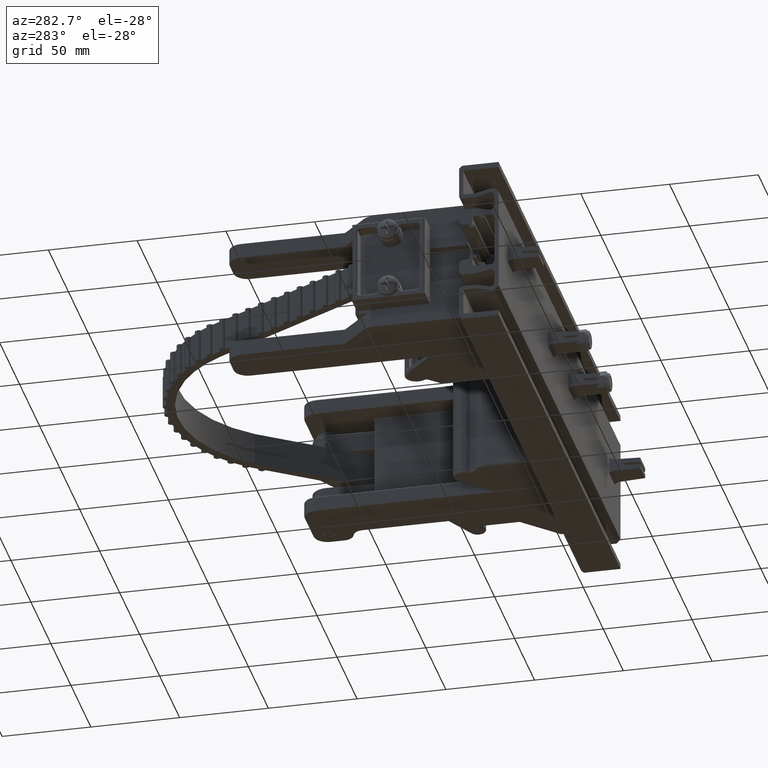
[diagram: clean part render]
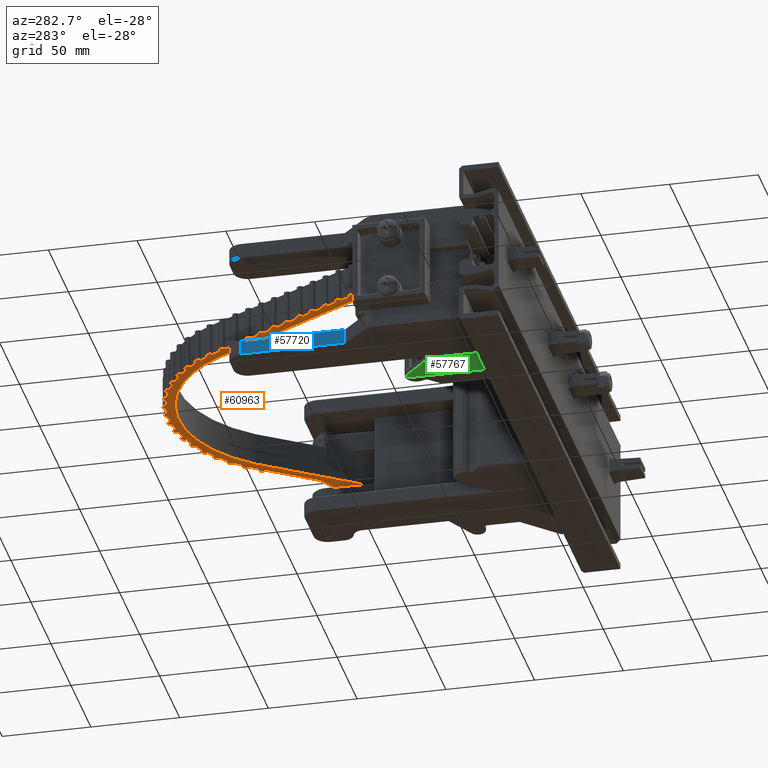
[diagram: same view with three faces highlighted in distinct colors, each labeled with its STEP entity id]
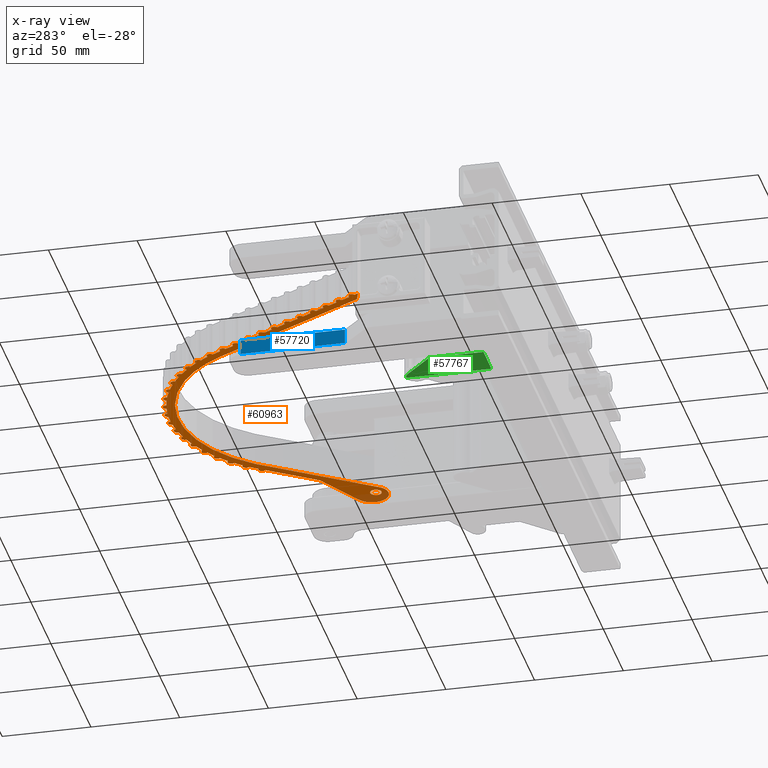
[diagram: x-ray of the same camera — body ghosted, the three highlighted faces saturated]
A machine part, auxiliary view with three faces highlighted in distinct colors.
The next image is the same camera in x-ray (body ghosted, the three faces saturated) — at least one of them is partly hidden behind the body in this view.
Their STEP definitions:

[orange] entity #60963 — the highlighted planar face has unit normal (0, 0, 1).
#382 = CARTESIAN_POINT ( 'NONE',  ( -7.459071182385302200, -2.123081717137933500, -0.3649999999999999900 ) ) ;
#397 = CARTESIAN_POINT ( 'NONE',  ( -5.865832357554712200, -0.8211496432181337700, -0.3649999999999999900 ) ) ;
#401 = CARTESIAN_POINT ( 'NONE',  ( -4.917234179520587400, -0.6250000000000000000, -0.3649999999999999900 ) ) ;
#405 = CARTESIAN_POINT ( 'NONE',  ( -7.938774677902513200, -3.692558603866293900, -0.3649999999999999900 ) ) ;
#411 = CARTESIAN_POINT ( 'NONE',  ( -7.337024255376846300, -1.941339129205732900, -0.3649999999999999900 ) ) ;
#413 = CARTESIAN_POINT ( 'NONE',  ( -5.138365318224219700, -0.6441043971941983200, -0.3649999999999999900 ) ) ;
#431 = CARTESIAN_POINT ( 'NONE',  ( -6.991360819658576800, -1.538444796434166800, -0.3649999999999999900 ) ) ;
#433 = CARTESIAN_POINT ( 'NONE',  ( -7.538392220967978100, -2.257686947964909300, -0.3649999999999999900 ) ) ;
#438 = CARTESIAN_POINT ( 'NONE',  ( -7.638248184044290800, -2.452506370247708600, -0.3649999999999999900 ) ) ;
#445 = CARTESIAN_POINT ( 'NONE',  ( -7.939188211691650600, -3.911478550234781100, -0.3649999999999999900 ) ) ;
#455 = CARTESIAN_POINT ( 'NONE',  ( -5.354648419369999200, -0.6779782930325185500, -0.3649999999999999900 ) ) ;
#456 = CARTESIAN_POINT ( 'NONE',  ( -5.718123010227119900, -0.7702345762941461600, -0.3649999999999999900 ) ) ;
#460 = CARTESIAN_POINT ( 'NONE',  ( -6.208952857952803900, -0.9724550370630434800, -0.3649999999999999900 ) ) ;
#466 = CARTESIAN_POINT ( 'NONE',  ( -2.125000000000000000, -0.5625000000000001100, -0.3649999999999999900 ) ) ;
#468 = CARTESIAN_POINT ( 'NONE',  ( -6.400170643881369700, -1.079045744937035900, -0.3649999999999999900 ) ) ;
#469 = CARTESIAN_POINT ( 'NONE',  ( -6.068246015659708400, -0.9045434779606101900, -0.3649999999999999900 ) ) ;
#472 = CARTESIAN_POINT ( 'NONE',  ( -6.830284296347608500, -1.390187674181804000, -0.3649999999999999900 ) ) ;
#473 = CARTESIAN_POINT ( 'NONE',  ( -4.982853862359850600, -0.6290517421871401100, -0.3649999999999999900 ) ) ;
#476 = CARTESIAN_POINT ( 'NONE',  ( -6.709302025269700200, -1.291325722892903100, -0.3649999999999999900 ) ) ;
#478 = CARTESIAN_POINT ( 'NONE',  ( -7.701210411576173700, -2.595496416167138800, -0.3649999999999999900 ) ) ;
#487 = CARTESIAN_POINT ( 'NONE',  ( -7.904606654978163500, -4.287439087672935600, -0.3649999999999999900 ) ) ;
#491 = CARTESIAN_POINT ( 'NONE',  ( -6.531927160639933800, -1.163013688936325600, -0.3649999999999999900 ) ) ;
#492 = CARTESIAN_POINT ( 'NONE',  ( -5.507315514774412600, -0.7111920448320049300, -0.3649999999999999900 ) ) ;
#494 = CARTESIAN_POINT ( 'NONE',  ( -4.607576839226120500, -0.6250000000000000000, -0.3649999999999999900 ) ) ;
#496 = CARTESIAN_POINT ( 'NONE',  ( -3.380114069403072000, -0.6249999999999997800, -0.3649999999999999900 ) ) ;
#497 = CARTESIAN_POINT ( 'NONE',  ( -1.875000000000000000, -0.5625000000000001100, -0.3649999999999999900 ) ) ;
#504 = CARTESIAN_POINT ( 'NONE',  ( -7.930291586409845600, -4.067463310344263200, -0.3649999999999999900 ) ) ;
#508 = CARTESIAN_POINT ( 'NONE',  ( -7.940867292675618700, -3.808035618942109800, -0.3649999999999999900 ) ) ;
#515 = CARTESIAN_POINT ( 'NONE',  ( -7.099894073993485000, -1.650832198002544400, -0.3649999999999999900 ) ) ;
#523 = CARTESIAN_POINT ( 'NONE',  ( -7.826489625791429800, -4.654212491494749100, -0.3649999999999999900 ) ) ;
#527 = CARTESIAN_POINT ( 'NONE',  ( -7.929288816325079200, -3.536608567771552200, -0.3649999999999999900 ) ) ;
#529 = CARTESIAN_POINT ( 'NONE',  ( -7.902746676371107200, -3.316562603437389600, -0.3649999999999999900 ) ) ;
#531 = CARTESIAN_POINT ( 'NONE',  ( -7.242442455721034700, -1.816982068683680800, -0.3649999999999999900 ) ) ;
#535 = CARTESIAN_POINT ( 'NONE',  ( -7.874878327934432300, -3.162829879259257700, -0.3649999999999999900 ) ) ;
#537 = CARTESIAN_POINT ( 'NONE',  ( -7.823224916842304000, -2.950091199694282000, -0.3649999999999999900 ) ) ;
#539 = CARTESIAN_POINT ( 'NONE',  ( -7.777493093494250300, -2.800695765824702500, -0.3649999999999999900 ) ) ;
#549 = CARTESIAN_POINT ( 'NONE',  ( -7.877327542837120300, -4.441277461847306500, -0.3649999999999999900 ) ) ;
#550 = CARTESIAN_POINT ( 'NONE',  ( -7.753629914144911000, -3.808035618942109800, -0.3649999999999999900 ) ) ;
#551 = CARTESIAN_POINT ( 'NONE',  ( -4.917234179520591800, -0.8125000000000001100, -0.3649999999999999900 ) ) ;
#566 = EDGE_CURVE ( 'NONE', #32032, #31917, #29628, .T. ) ;
#1109 = CARTESIAN_POINT ( 'NONE',  ( -7.643420762595225100, -5.152502412625060500, -0.3649999999999999900 ) ) ;
#1111 = CARTESIAN_POINT ( 'NONE',  ( -7.611041042842584800, -5.220014283334027300, -0.3649999999999999900 ) ) ;
#1112 = CARTESIAN_POINT ( 'NONE',  ( -7.547286611098058100, -5.349033671066112400, -0.3649999999999999900 ) ) ;
#1114 = CARTESIAN_POINT ( 'NONE',  ( -5.693191288462330100, -8.678505111117267700, -0.3649999999999999900 ) ) ;
#1116 = CARTESIAN_POINT ( 'NONE',  ( -7.443179630095076300, -5.137066215065609700, -0.3649999999999999900 ) ) ;
#1121 = CARTESIAN_POINT ( 'NONE',  ( -2.000000000000000400, -0.8125000000000001100, -0.3649999999999999900 ) ) ;
#1123 = CARTESIAN_POINT ( 'NONE',  ( -1.894963017439453800, -0.7893639069895777000, -0.3649999999999995500 ) ) ;
#1124 = CARTESIAN_POINT ( 'NONE',  ( -4.763826839226123200, -0.6250000000000000000, -0.3649999999999999900 ) ) ;
#1141 = CARTESIAN_POINT ( 'NONE',  ( -3.275077086842526500, -0.6018639069895770400, -0.3649999999999999900 ) ) ;
#1143 = CARTESIAN_POINT ( 'NONE',  ( -2.210073965121091400, -0.1087721860208449700, -0.3649999999999995500 ) ) ;
#1176 = CARTESIAN_POINT ( 'NONE',  ( -5.773861409395769000, -8.937901573287117400, -0.3649999999999999900 ) ) ;
#1179 = CARTESIAN_POINT ( 'NONE',  ( -5.816778022395589600, -8.851051530376228300, -0.3649999999999999900 ) ) ;
#1186 = CARTESIAN_POINT ( 'NONE',  ( -5.885998365943689400, -8.710970816003822400, -0.3649999999999999900 ) ) ;
#1189 = CARTESIAN_POINT ( 'NONE',  ( -5.982906846911027400, -8.514857815882457700, -0.3649999999999999900 ) ) ;
#1193 = CARTESIAN_POINT ( 'NONE',  ( -6.052127190459126300, -8.374777101510051800, -0.3649999999999999900 ) ) ;
#1196 = CARTESIAN_POINT ( 'NONE',  ( -6.149035671426464200, -8.178664101388687200, -0.3649999999999999900 ) ) ;
#1200 = CARTESIAN_POINT ( 'NONE',  ( -6.218256014974562300, -8.038583387016281300, -0.3649999999999999900 ) ) ;
#1203 = CARTESIAN_POINT ( 'NONE',  ( -6.315164495941900200, -7.842470386894915700, -0.3649999999999999900 ) ) ;
#1207 = CARTESIAN_POINT ( 'NONE',  ( -6.384384839490000000, -7.702389672522509800, -0.3649999999999999900 ) ) ;
#1210 = CARTESIAN_POINT ( 'NONE',  ( -6.481293320457338000, -7.506276672401144300, -0.3649999999999999900 ) ) ;
#1213 = CARTESIAN_POINT ( 'NONE',  ( -6.550513664005436900, -7.366195958028738400, -0.3649999999999999900 ) ) ;
#1231 = CARTESIAN_POINT ( 'NONE',  ( -6.647422144972774800, -7.170082957907373700, -0.3649999999999999900 ) ) ;
#1234 = CARTESIAN_POINT ( 'NONE',  ( -6.716642488520872900, -7.030002243534967800, -0.3649999999999999900 ) ) ;
#1237 = CARTESIAN_POINT ( 'NONE',  ( -6.813550969488211700, -6.833889243413601400, -0.3649999999999999900 ) ) ;
#1244 = CARTESIAN_POINT ( 'NONE',  ( -6.882771313036310600, -6.693808529041195500, -0.3649999999999999900 ) ) ;
#1248 = CARTESIAN_POINT ( 'NONE',  ( -6.979679794003648600, -6.497695528919831700, -0.3649999999999999900 ) ) ;
#1251 = CARTESIAN_POINT ( 'NONE',  ( -7.048900137551747500, -6.357614814547425800, -0.3649999999999999900 ) ) ;
#1255 = CARTESIAN_POINT ( 'NONE',  ( -7.145808618519085400, -6.161501814426060300, -0.3649999999999999900 ) ) ;
#1258 = CARTESIAN_POINT ( 'NONE',  ( -7.215028962067184400, -6.021421100053654400, -0.3649999999999999900 ) ) ;
#1261 = CARTESIAN_POINT ( 'NONE',  ( -7.311937443034523200, -5.825308099932288800, -0.3649999999999999900 ) ) ;
#1265 = CARTESIAN_POINT ( 'NONE',  ( -7.381157786582621200, -5.685227385559882900, -0.3649999999999999900 ) ) ;
#1267 = CARTESIAN_POINT ( 'NONE',  ( -7.478066267549959200, -5.489114385438518300, -0.3649999999999999900 ) ) ;
#1269 = CARTESIAN_POINT ( 'NONE',  ( -7.705834657137530500, -5.009272174561020000, -0.3649999999999999900 ) ) ;
#1279 = CARTESIAN_POINT ( 'NONE',  ( -7.781330551399802800, -4.803782051659607300, -0.3649999999999999900 ) ) ;
#15709 = EDGE_LOOP ( 'NONE', ( #77342, #77343 ) ) ;
#15737 = EDGE_LOOP ( 'NONE', ( #77271, #77272, #77273, #77274, #77275, #77276, #77277, #77278, #77279, #77280, #77281, #77282, #77283, #77284, #77285, #77286, #77287, #77288, #77289, #77290, #77291, #77292, #77293, #77294, #77295, #77296, #77297, #77298, #77299, #77300, #77301, #77302, #77303, #77304, #77305, #77306, #77307, #77308, #77309, #77310, #77311, #77312, #77313, #77314, #77315, #77316, #77317, #77318, #77319, #77320, #77321, #77322, #77323, #77324, #77325, #77326, #77327, #77328, #77329, #77330, #77331, #77332, #77333, #77334, #77335, #77336, #77337, #77338, #77339, #77340, #77341 ) ) ;
#17438 = PLANE ( 'NONE',  #17839 ) ;
#17441 = CARTESIAN_POINT ( 'NONE',  ( 1.707404996040164500E-017, -1.365923996832131600E-016, -0.3649999999999999900 ) ) ;
#17447 = DIRECTION ( 'NONE',  ( 0.0000000000000000000, 0.0000000000000000000, 1.000000000000000000 ) ) ;
#17448 = DIRECTION ( 'NONE',  ( 1.000000000000000000, 0.0000000000000000000, -0.0000000000000000000 ) ) ;
#17839 = AXIS2_PLACEMENT_3D ( 'NONE', #17441, #17447, #17448 ) ;
#18165 = AXIS2_PLACEMENT_3D ( 'NONE', #37381, #37384, #37386 ) ;
#18168 = AXIS2_PLACEMENT_3D ( 'NONE', #37412, #37416, #37418 ) ;
#18172 = AXIS2_PLACEMENT_3D ( 'NONE', #37396, #37400, #37402 ) ;
#18194 = AXIS2_PLACEMENT_3D ( 'NONE', #37786, #37788, #37789 ) ;
#18209 = AXIS2_PLACEMENT_3D ( 'NONE', #37724, #37726, #37727 ) ;
#18220 = AXIS2_PLACEMENT_3D ( 'NONE', #37958, #37961, #37962 ) ;
#22222 = CIRCLE ( 'NONE', #18165, 3.000000000000000900 ) ;
#22225 = CIRCLE ( 'NONE', #18172, 3.187237378530708200 ) ;
#22228 = CIRCLE ( 'NONE', #18168, 0.1249999999999999000 ) ;
#22252 = LINE ( 'NONE', #37599, #22253 ) ;
#22253 = VECTOR ( 'NONE', #37601, 39.37007874015748100 ) ;
#22269 = CIRCLE ( 'NONE', #18209, 3.187237378530708200 ) ;
#22274 = CIRCLE ( 'NONE', #18194, 3.187237378530708200 ) ;
#22284 = CIRCLE ( 'NONE', #18220, 3.187237378530708200 ) ;
#29628 = CIRCLE ( 'NONE', #31283, 3.187237378530708200 ) ;
#30150 = EDGE_CURVE ( 'NONE', #32031, #32019, #59418, .T. ) ;
#30163 = EDGE_CURVE ( 'NONE', #32042, #32069, #59427, .T. ) ;
#30172 = EDGE_CURVE ( 'NONE', #31974, #32036, #59433, .T. ) ;
#30185 = EDGE_CURVE ( 'NONE', #31893, #31944, #59442, .T. ) ;
#30189 = EDGE_CURVE ( 'NONE', #31984, #31977, #59445, .T. ) ;
#30198 = EDGE_CURVE ( 'NONE', #32160, #32045, #59451, .T. ) ;
#30206 = EDGE_CURVE ( 'NONE', #32153, #32156, #59458, .T. ) ;
#30215 = EDGE_CURVE ( 'NONE', #32145, #32113, #59465, .T. ) ;
#30224 = EDGE_CURVE ( 'NONE', #32138, #32142, #59471, .T. ) ;
#30231 = EDGE_CURVE ( 'NONE', #32100, #31931, #59477, .T. ) ;
#30237 = EDGE_CURVE ( 'NONE', #32061, #32092, #59480, .T. ) ;
#30246 = EDGE_CURVE ( 'NONE', #32131, #32176, #59486, .T. ) ;
#30255 = EDGE_CURVE ( 'NONE', #32907, #32925, #59493, .T. ) ;
#30263 = EDGE_CURVE ( 'NONE', #32900, #32903, #59468, .T. ) ;
#30272 = EDGE_CURVE ( 'NONE', #32892, #32896, #59505, .T. ) ;
#30281 = EDGE_CURVE ( 'NONE', #32885, #32889, #59512, .T. ) ;
#30289 = EDGE_CURVE ( 'NONE', #32878, #32881, #59521, .T. ) ;
#30298 = EDGE_CURVE ( 'NONE', #32867, #32870, #59529, .T. ) ;
#30307 = EDGE_CURVE ( 'NONE', #32845, #32863, #59536, .T. ) ;
#30315 = EDGE_CURVE ( 'NONE', #32837, #32841, #59545, .T. ) ;
#30324 = EDGE_CURVE ( 'NONE', #32830, #32834, #59553, .T. ) ;
#30333 = EDGE_CURVE ( 'NONE', #32823, #32826, #59560, .T. ) ;
#30341 = EDGE_CURVE ( 'NONE', #32815, #32819, #59565, .T. ) ;
#30350 = EDGE_CURVE ( 'NONE', #32804, #32808, #59571, .T. ) ;
#30370 = EDGE_CURVE ( 'NONE', #32769, #32768, #59575, .T. ) ;
#30465 = EDGE_CURVE ( 'NONE', #32179, #32746, #59640, .T. ) ;
#30467 = EDGE_CURVE ( 'NONE', #32738, #32804, #59635, .T. ) ;
#30469 = EDGE_CURVE ( 'NONE', #32769, #32747, #59643, .T. ) ;
#30471 = EDGE_CURVE ( 'NONE', #32749, #32074, #59645, .T. ) ;
#30474 = EDGE_CURVE ( 'NONE', #32749, #31924, #59642, .T. ) ;
#30476 = EDGE_CURVE ( 'NONE', #32768, #32078, #59646, .T. ) ;
#30478 = EDGE_CURVE ( 'NONE', #32746, #32747, #59648, .T. ) ;
#30480 = EDGE_CURVE ( 'NONE', #32178, #32740, #59649, .T. ) ;
#30482 = EDGE_CURVE ( 'NONE', #32819, #32823, #59651, .T. ) ;
#30484 = EDGE_CURVE ( 'NONE', #32740, #32738, #59650, .T. ) ;
#30487 = EDGE_CURVE ( 'NONE', #32808, #32815, #59653, .T. ) ;
#30489 = EDGE_CURVE ( 'NONE', #32733, #32907, #59654, .T. ) ;
#30491 = EDGE_CURVE ( 'NONE', #32826, #32830, #59655, .T. ) ;
#30493 = EDGE_CURVE ( 'NONE', #32834, #32837, #59656, .T. ) ;
#30495 = EDGE_CURVE ( 'NONE', #32841, #32845, #59657, .T. ) ;
#30497 = EDGE_CURVE ( 'NONE', #32863, #32867, #59659, .T. ) ;
#30500 = EDGE_CURVE ( 'NONE', #32870, #32878, #59660, .T. ) ;
#30502 = EDGE_CURVE ( 'NONE', #32881, #32885, #59661, .T. ) ;
#30504 = EDGE_CURVE ( 'NONE', #32889, #32892, #59662, .T. ) ;
#30506 = EDGE_CURVE ( 'NONE', #32896, #32900, #59663, .T. ) ;
#30508 = EDGE_CURVE ( 'NONE', #32903, #32736, #59664, .T. ) ;
#30510 = EDGE_CURVE ( 'NONE', #32735, #32733, #59666, .T. ) ;
#30513 = EDGE_CURVE ( 'NONE', #32736, #32735, #59652, .T. ) ;
#30515 = EDGE_CURVE ( 'NONE', #32176, #32061, #59667, .T. ) ;
#30517 = EDGE_CURVE ( 'NONE', #32925, #32131, #59668, .T. ) ;
#30519 = EDGE_CURVE ( 'NONE', #32080, #32028, #59670, .T. ) ;
#30521 = EDGE_CURVE ( 'NONE', #32092, #31994, #59671, .T. ) ;
#30523 = EDGE_CURVE ( 'NONE', #31931, #32138, #59673, .T. ) ;
#30526 = EDGE_CURVE ( 'NONE', #32142, #32153, #59674, .T. ) ;
#30528 = EDGE_CURVE ( 'NONE', #32156, #32160, #59675, .T. ) ;
#30530 = EDGE_CURVE ( 'NONE', #32045, #31984, #59676, .T. ) ;
#30532 = EDGE_CURVE ( 'NONE', #31977, #31893, #59677, .T. ) ;
#30534 = EDGE_CURVE ( 'NONE', #31944, #32145, #59678, .T. ) ;
#30536 = EDGE_CURVE ( 'NONE', #32113, #31974, #59680, .T. ) ;
#30539 = EDGE_CURVE ( 'NONE', #32036, #32042, #59681, .T. ) ;
#30541 = EDGE_CURVE ( 'NONE', #32069, #32031, #59682, .T. ) ;
#30543 = EDGE_CURVE ( 'NONE', #32019, #32032, #59683, .T. ) ;
#30545 = EDGE_CURVE ( 'NONE', #31917, #32013, #59684, .T. ) ;
#30547 = EDGE_CURVE ( 'NONE', #32071, #32010, #59685, .T. ) ;
#30549 = EDGE_CURVE ( 'NONE', #31947, #32038, #59687, .T. ) ;
#31283 = AXIS2_PLACEMENT_3D ( 'NONE', #31620, #31621, #31622 ) ;
#31620 = CARTESIAN_POINT ( 'NONE',  ( -4.753629914144910100, -3.808035618942109800, -0.3649999999999999900 ) ) ;
#31621 = DIRECTION ( 'NONE',  ( 0.0000000000000000000, 0.0000000000000000000, -1.000000000000000000 ) ) ;
#31622 = DIRECTION ( 'NONE',  ( -1.000000000000000000, 0.0000000000000000000, 0.0000000000000000000 ) ) ;
#31893 = VERTEX_POINT ( 'NONE', #382 ) ;
#31917 = VERTEX_POINT ( 'NONE', #397 ) ;
#31924 = VERTEX_POINT ( 'NONE', #401 ) ;
#31931 = VERTEX_POINT ( 'NONE', #405 ) ;
#31944 = VERTEX_POINT ( 'NONE', #411 ) ;
#31947 = VERTEX_POINT ( 'NONE', #413 ) ;
#31974 = VERTEX_POINT ( 'NONE', #431 ) ;
#31977 = VERTEX_POINT ( 'NONE', #433 ) ;
#31984 = VERTEX_POINT ( 'NONE', #438 ) ;
#31994 = VERTEX_POINT ( 'NONE', #445 ) ;
#32010 = VERTEX_POINT ( 'NONE', #455 ) ;
#32013 = VERTEX_POINT ( 'NONE', #456 ) ;
#32019 = VERTEX_POINT ( 'NONE', #460 ) ;
#32028 = VERTEX_POINT ( 'NONE', #466 ) ;
#32031 = VERTEX_POINT ( 'NONE', #468 ) ;
#32032 = VERTEX_POINT ( 'NONE', #469 ) ;
#32036 = VERTEX_POINT ( 'NONE', #472 ) ;
#32038 = VERTEX_POINT ( 'NONE', #473 ) ;
#32042 = VERTEX_POINT ( 'NONE', #476 ) ;
#32045 = VERTEX_POINT ( 'NONE', #478 ) ;
#32061 = VERTEX_POINT ( 'NONE', #487 ) ;
#32069 = VERTEX_POINT ( 'NONE', #491 ) ;
#32071 = VERTEX_POINT ( 'NONE', #492 ) ;
#32074 = VERTEX_POINT ( 'NONE', #494 ) ;
#32078 = VERTEX_POINT ( 'NONE', #496 ) ;
#32080 = VERTEX_POINT ( 'NONE', #497 ) ;
#32092 = VERTEX_POINT ( 'NONE', #504 ) ;
#32100 = VERTEX_POINT ( 'NONE', #508 ) ;
#32113 = VERTEX_POINT ( 'NONE', #515 ) ;
#32131 = VERTEX_POINT ( 'NONE', #523 ) ;
#32138 = VERTEX_POINT ( 'NONE', #527 ) ;
#32142 = VERTEX_POINT ( 'NONE', #529 ) ;
#32145 = VERTEX_POINT ( 'NONE', #531 ) ;
#32153 = VERTEX_POINT ( 'NONE', #535 ) ;
#32156 = VERTEX_POINT ( 'NONE', #537 ) ;
#32160 = VERTEX_POINT ( 'NONE', #539 ) ;
#32176 = VERTEX_POINT ( 'NONE', #549 ) ;
#32178 = VERTEX_POINT ( 'NONE', #550 ) ;
#32179 = VERTEX_POINT ( 'NONE', #551 ) ;
#32733 = VERTEX_POINT ( 'NONE', #1109 ) ;
#32735 = VERTEX_POINT ( 'NONE', #1111 ) ;
#32736 = VERTEX_POINT ( 'NONE', #1112 ) ;
#32738 = VERTEX_POINT ( 'NONE', #1114 ) ;
#32740 = VERTEX_POINT ( 'NONE', #1116 ) ;
#32746 = VERTEX_POINT ( 'NONE', #1121 ) ;
#32747 = VERTEX_POINT ( 'NONE', #1123 ) ;
#32749 = VERTEX_POINT ( 'NONE', #1124 ) ;
#32768 = VERTEX_POINT ( 'NONE', #1141 ) ;
#32769 = VERTEX_POINT ( 'NONE', #1143 ) ;
#32804 = VERTEX_POINT ( 'NONE', #1176 ) ;
#32808 = VERTEX_POINT ( 'NONE', #1179 ) ;
#32815 = VERTEX_POINT ( 'NONE', #1186 ) ;
#32819 = VERTEX_POINT ( 'NONE', #1189 ) ;
#32823 = VERTEX_POINT ( 'NONE', #1193 ) ;
#32826 = VERTEX_POINT ( 'NONE', #1196 ) ;
#32830 = VERTEX_POINT ( 'NONE', #1200 ) ;
#32834 = VERTEX_POINT ( 'NONE', #1203 ) ;
#32837 = VERTEX_POINT ( 'NONE', #1207 ) ;
#32841 = VERTEX_POINT ( 'NONE', #1210 ) ;
#32845 = VERTEX_POINT ( 'NONE', #1213 ) ;
#32863 = VERTEX_POINT ( 'NONE', #1231 ) ;
#32867 = VERTEX_POINT ( 'NONE', #1234 ) ;
#32870 = VERTEX_POINT ( 'NONE', #1237 ) ;
#32878 = VERTEX_POINT ( 'NONE', #1244 ) ;
#32881 = VERTEX_POINT ( 'NONE', #1248 ) ;
#32885 = VERTEX_POINT ( 'NONE', #1251 ) ;
#32889 = VERTEX_POINT ( 'NONE', #1255 ) ;
#32892 = VERTEX_POINT ( 'NONE', #1258 ) ;
#32896 = VERTEX_POINT ( 'NONE', #1261 ) ;
#32900 = VERTEX_POINT ( 'NONE', #1265 ) ;
#32903 = VERTEX_POINT ( 'NONE', #1267 ) ;
#32907 = VERTEX_POINT ( 'NONE', #1269 ) ;
#32925 = VERTEX_POINT ( 'NONE', #1279 ) ;
#37381 = CARTESIAN_POINT ( 'NONE',  ( -4.753629914144910100, -3.808035618942109800, -0.3649999999999999900 ) ) ;
#37384 = DIRECTION ( 'NONE',  ( -0.0000000000000000000, -0.0000000000000000000, 1.000000000000000000 ) ) ;
#37386 = DIRECTION ( 'NONE',  ( -1.000000000000000000, 0.0000000000000000000, 0.0000000000000000000 ) ) ;
#37396 = CARTESIAN_POINT ( 'NONE',  ( -4.753629914144910100, -3.808035618942109800, -0.3649999999999999900 ) ) ;
#37400 = DIRECTION ( 'NONE',  ( 0.0000000000000000000, 0.0000000000000000000, -1.000000000000000000 ) ) ;
#37402 = DIRECTION ( 'NONE',  ( -1.000000000000000000, 0.0000000000000000000, 0.0000000000000000000 ) ) ;
#37412 = CARTESIAN_POINT ( 'NONE',  ( -2.000000000000000000, -0.5625000000000001100, -0.3649999999999999900 ) ) ;
#37416 = DIRECTION ( 'NONE',  ( 0.0000000000000000000, 0.0000000000000000000, 1.000000000000000000 ) ) ;
#37418 = DIRECTION ( 'NONE',  ( 1.000000000000000000, 0.0000000000000000000, 0.0000000000000000000 ) ) ;
#37599 = CARTESIAN_POINT ( 'NONE',  ( -17.75000000000000000, -0.6250000000000000000, -0.3649999999999999900 ) ) ;
#37601 = DIRECTION ( 'NONE',  ( -1.000000000000000000, -0.0000000000000000000, -0.0000000000000000000 ) ) ;
#37724 = CARTESIAN_POINT ( 'NONE',  ( -4.753629914144910100, -3.808035618942109800, -0.3649999999999999900 ) ) ;
#37726 = DIRECTION ( 'NONE',  ( 0.0000000000000000000, 0.0000000000000000000, -1.000000000000000000 ) ) ;
#37727 = DIRECTION ( 'NONE',  ( -1.000000000000000000, 0.0000000000000000000, 0.0000000000000000000 ) ) ;
#37786 = CARTESIAN_POINT ( 'NONE',  ( -4.753629914144910100, -3.808035618942109800, -0.3649999999999999900 ) ) ;
#37788 = DIRECTION ( 'NONE',  ( 0.0000000000000000000, 0.0000000000000000000, -1.000000000000000000 ) ) ;
#37789 = DIRECTION ( 'NONE',  ( -1.000000000000000000, 0.0000000000000000000, 0.0000000000000000000 ) ) ;
#37958 = CARTESIAN_POINT ( 'NONE',  ( -4.753629914144910100, -3.808035618942109800, -0.3649999999999999900 ) ) ;
#37961 = DIRECTION ( 'NONE',  ( 0.0000000000000000000, 0.0000000000000000000, -1.000000000000000000 ) ) ;
#37962 = DIRECTION ( 'NONE',  ( -1.000000000000000000, 0.0000000000000000000, 0.0000000000000000000 ) ) ;
#45202 = AXIS2_PLACEMENT_3D ( 'NONE', #72201, #72206, #72208 ) ;
#45205 = AXIS2_PLACEMENT_3D ( 'NONE', #72232, #72238, #72240 ) ;
#45206 = AXIS2_PLACEMENT_3D ( 'NONE', #72297, #72303, #72305 ) ;
#45207 = AXIS2_PLACEMENT_3D ( 'NONE', #72246, #72253, #72261 ) ;
#45210 = AXIS2_PLACEMENT_3D ( 'NONE', #72278, #72286, #72295 ) ;
#45213 = AXIS2_PLACEMENT_3D ( 'NONE', #72319, #72312, #72323 ) ;
#45215 = AXIS2_PLACEMENT_3D ( 'NONE', #72336, #72340, #72342 ) ;
#45217 = AXIS2_PLACEMENT_3D ( 'NONE', #72357, #72362, #72364 ) ;
#45219 = AXIS2_PLACEMENT_3D ( 'NONE', #72379, #72377, #72389 ) ;
#45220 = AXIS2_PLACEMENT_3D ( 'NONE', #72421, #72426, #72428 ) ;
#45222 = AXIS2_PLACEMENT_3D ( 'NONE', #72386, #72411, #72413 ) ;
#45225 = AXIS2_PLACEMENT_3D ( 'NONE', #72444, #72449, #72451 ) ;
#45227 = AXIS2_PLACEMENT_3D ( 'NONE', #72466, #72473, #72475 ) ;
#59418 = CIRCLE ( 'NONE', #45202, 3.187237378530708200 ) ;
#59427 = CIRCLE ( 'NONE', #45205, 3.187237378530708200 ) ;
#59433 = CIRCLE ( 'NONE', #45207, 3.187237378530708200 ) ;
#59442 = CIRCLE ( 'NONE', #45210, 3.187237378530708200 ) ;
#59445 = CIRCLE ( 'NONE', #45206, 3.187237378530708200 ) ;
#59451 = CIRCLE ( 'NONE', #45213, 3.187237378530708200 ) ;
#59458 = CIRCLE ( 'NONE', #45215, 3.187237378530708200 ) ;
#59465 = CIRCLE ( 'NONE', #45217, 3.187237378530708200 ) ;
#59468 = LINE ( 'NONE', #72480, #59494 ) ;
#59471 = CIRCLE ( 'NONE', #45219, 3.187237378530708200 ) ;
#59477 = CIRCLE ( 'NONE', #45222, 3.187237378530708200 ) ;
#59480 = CIRCLE ( 'NONE', #45220, 3.187237378530708200 ) ;
#59486 = CIRCLE ( 'NONE', #45225, 3.187237378530708200 ) ;
#59493 = CIRCLE ( 'NONE', #45227, 3.187237378530708200 ) ;
#59494 = VECTOR ( 'NONE', #72491, 39.37007874015748100 ) ;
#59502 = VECTOR ( 'NONE', #72504, 39.37007874015748100 ) ;
#59505 = LINE ( 'NONE', #72497, #59502 ) ;
#59512 = LINE ( 'NONE', #72507, #59513 ) ;
#59513 = VECTOR ( 'NONE', #72520, 39.37007874015748100 ) ;
#59519 = VECTOR ( 'NONE', #72533, 39.37007874015748100 ) ;
#59521 = LINE ( 'NONE', #72526, #59519 ) ;
#59527 = VECTOR ( 'NONE', #72543, 39.37007874015748100 ) ;
#59529 = LINE ( 'NONE', #72538, #59527 ) ;
#59536 = LINE ( 'NONE', #72546, #59537 ) ;
#59537 = VECTOR ( 'NONE', #72554, 39.37007874015748100 ) ;
#59543 = VECTOR ( 'NONE', #72565, 39.37007874015748100 ) ;
#59545 = LINE ( 'NONE', #72559, #59543 ) ;
#59551 = VECTOR ( 'NONE', #72574, 39.37007874015748100 ) ;
#59553 = LINE ( 'NONE', #72569, #59551 ) ;
#59560 = LINE ( 'NONE', #72576, #59561 ) ;
#59561 = VECTOR ( 'NONE', #72584, 39.37007874015748100 ) ;
#59562 = VECTOR ( 'NONE', #72594, 39.37007874015748100 ) ;
#59565 = LINE ( 'NONE', #72583, #59562 ) ;
#59571 = LINE ( 'NONE', #72600, #59574 ) ;
#59574 = VECTOR ( 'NONE', #72603, 39.37007874015748100 ) ;
#59575 = LINE ( 'NONE', #72626, #59580 ) ;
#59580 = VECTOR ( 'NONE', #72627, 39.37007874015748900 ) ;
#59635 = LINE ( 'NONE', #74652, #59636 ) ;
#59636 = VECTOR ( 'NONE', #74656, 39.37007874015748100 ) ;
#59637 = VECTOR ( 'NONE', #74655, 39.37007874015748100 ) ;
#59640 = LINE ( 'NONE', #74650, #59637 ) ;
#59642 = LINE ( 'NONE', #74664, #59644 ) ;
#59643 = CIRCLE ( 'NONE', #73683, 0.3750000000000005000 ) ;
#59644 = VECTOR ( 'NONE', #74665, 39.37007874015748100 ) ;
#59645 = CIRCLE ( 'NONE', #73686, 0.07812500000000041600 ) ;
#59646 = CIRCLE ( 'NONE', #73688, 0.2499999999999998100 ) ;
#59647 = VECTOR ( 'NONE', #74680, 39.37007874015748100 ) ;
#59648 = CIRCLE ( 'NONE', #73685, 0.2500000000000000600 ) ;
#59649 = CIRCLE ( 'NONE', #73687, 3.000000000000000900 ) ;
#59650 = LINE ( 'NONE', #74672, #59647 ) ;
#59651 = CIRCLE ( 'NONE', #73690, 0.07812500000000151300 ) ;
#59652 = LINE ( 'NONE', #74716, #59665 ) ;
#59653 = CIRCLE ( 'NONE', #73691, 0.07812500000000151300 ) ;
#59654 = CIRCLE ( 'NONE', #73689, 0.07812500000000151300 ) ;
#59655 = CIRCLE ( 'NONE', #73692, 0.07812500000000151300 ) ;
#59656 = CIRCLE ( 'NONE', #73693, 0.07812500000000151300 ) ;
#59657 = CIRCLE ( 'NONE', #73694, 0.07812500000000151300 ) ;
#59659 = CIRCLE ( 'NONE', #73695, 0.07812500000000151300 ) ;
#59660 = CIRCLE ( 'NONE', #73696, 0.07812500000000151300 ) ;
#59661 = CIRCLE ( 'NONE', #73698, 0.07812500000000151300 ) ;
#59662 = CIRCLE ( 'NONE', #73697, 0.07812500000000151300 ) ;
#59663 = CIRCLE ( 'NONE', #73699, 0.07812500000000151300 ) ;
#59664 = CIRCLE ( 'NONE', #73700, 0.07812500000000151300 ) ;
#59665 = VECTOR ( 'NONE', #74717, 39.37007874015748100 ) ;
#59666 = CIRCLE ( 'NONE', #73701, 3.187237378530708200 ) ;
#59667 = CIRCLE ( 'NONE', #73704, 0.07812500000000041600 ) ;
#59668 = CIRCLE ( 'NONE', #73703, 0.07812500000000041600 ) ;
#59670 = CIRCLE ( 'NONE', #73702, 0.1249999999999999000 ) ;
#59671 = CIRCLE ( 'NONE', #73705, 0.07812500000000041600 ) ;
#59673 = CIRCLE ( 'NONE', #73707, 0.07812500000000041600 ) ;
#59674 = CIRCLE ( 'NONE', #73706, 0.07812500000000041600 ) ;
#59675 = CIRCLE ( 'NONE', #73709, 0.07812500000000041600 ) ;
#59676 = CIRCLE ( 'NONE', #73708, 0.07812500000000041600 ) ;
#59677 = CIRCLE ( 'NONE', #73710, 0.07812500000000041600 ) ;
#59678 = CIRCLE ( 'NONE', #73711, 0.07812500000000041600 ) ;
#59680 = CIRCLE ( 'NONE', #73712, 0.07812500000000041600 ) ;
#59681 = CIRCLE ( 'NONE', #73713, 0.07812500000000041600 ) ;
#59682 = CIRCLE ( 'NONE', #73715, 0.07812500000000041600 ) ;
#59683 = CIRCLE ( 'NONE', #73714, 0.07812500000000041600 ) ;
#59684 = CIRCLE ( 'NONE', #73716, 0.07812500000000041600 ) ;
#59685 = CIRCLE ( 'NONE', #73717, 0.07812500000000041600 ) ;
#59687 = CIRCLE ( 'NONE', #73718, 0.07812500000000041600 ) ;
#60963 = ADVANCED_FACE ( 'NONE', ( #69225, #69227 ), #17438, .F. ) ;
#62029 = EDGE_CURVE ( 'NONE', #32179, #32178, #22222, .T. ) ;
#62033 = EDGE_CURVE ( 'NONE', #31994, #32100, #22225, .T. ) ;
#62036 = EDGE_CURVE ( 'NONE', #32028, #32080, #22228, .T. ) ;
#62067 = EDGE_CURVE ( 'NONE', #32078, #32074, #22252, .T. ) ;
#62084 = EDGE_CURVE ( 'NONE', #32038, #31924, #22269, .T. ) ;
#62088 = EDGE_CURVE ( 'NONE', #32010, #31947, #22274, .T. ) ;
#62100 = EDGE_CURVE ( 'NONE', #32013, #32071, #22284, .T. ) ;
#69225 = FACE_OUTER_BOUND ( 'NONE', #15737, .T. ) ;
#69227 = FACE_BOUND ( 'NONE', #15709, .T. ) ;
#72201 = CARTESIAN_POINT ( 'NONE',  ( -4.753629914144910100, -3.808035618942109800, -0.3649999999999999900 ) ) ;
#72206 = DIRECTION ( 'NONE',  ( 0.0000000000000000000, 0.0000000000000000000, -1.000000000000000000 ) ) ;
#72208 = DIRECTION ( 'NONE',  ( -1.000000000000000000, 0.0000000000000000000, 0.0000000000000000000 ) ) ;
#72232 = CARTESIAN_POINT ( 'NONE',  ( -4.753629914144910100, -3.808035618942109800, -0.3649999999999999900 ) ) ;
#72238 = DIRECTION ( 'NONE',  ( 0.0000000000000000000, 0.0000000000000000000, -1.000000000000000000 ) ) ;
#72240 = DIRECTION ( 'NONE',  ( -1.000000000000000000, 0.0000000000000000000, 0.0000000000000000000 ) ) ;
#72246 = CARTESIAN_POINT ( 'NONE',  ( -4.753629914144910100, -3.808035618942109800, -0.3649999999999999900 ) ) ;
#72253 = DIRECTION ( 'NONE',  ( 0.0000000000000000000, 0.0000000000000000000, -1.000000000000000000 ) ) ;
#72261 = DIRECTION ( 'NONE',  ( -1.000000000000000000, 0.0000000000000000000, 0.0000000000000000000 ) ) ;
#72278 = CARTESIAN_POINT ( 'NONE',  ( -4.753629914144910100, -3.808035618942109800, -0.3649999999999999900 ) ) ;
#72286 = DIRECTION ( 'NONE',  ( 0.0000000000000000000, 0.0000000000000000000, -1.000000000000000000 ) ) ;
#72295 = DIRECTION ( 'NONE',  ( -1.000000000000000000, 0.0000000000000000000, 0.0000000000000000000 ) ) ;
#72297 = CARTESIAN_POINT ( 'NONE',  ( -4.753629914144910100, -3.808035618942109800, -0.3649999999999999900 ) ) ;
#72303 = DIRECTION ( 'NONE',  ( 0.0000000000000000000, 0.0000000000000000000, -1.000000000000000000 ) ) ;
#72305 = DIRECTION ( 'NONE',  ( -1.000000000000000000, 0.0000000000000000000, 0.0000000000000000000 ) ) ;
#72312 = DIRECTION ( 'NONE',  ( 0.0000000000000000000, 0.0000000000000000000, -1.000000000000000000 ) ) ;
#72319 = CARTESIAN_POINT ( 'NONE',  ( -4.753629914144910100, -3.808035618942109800, -0.3649999999999999900 ) ) ;
#72323 = DIRECTION ( 'NONE',  ( -1.000000000000000000, 0.0000000000000000000, 0.0000000000000000000 ) ) ;
#72336 = CARTESIAN_POINT ( 'NONE',  ( -4.753629914144910100, -3.808035618942109800, -0.3649999999999999900 ) ) ;
#72340 = DIRECTION ( 'NONE',  ( 0.0000000000000000000, 0.0000000000000000000, -1.000000000000000000 ) ) ;
#72342 = DIRECTION ( 'NONE',  ( -1.000000000000000000, 0.0000000000000000000, 0.0000000000000000000 ) ) ;
#72357 = CARTESIAN_POINT ( 'NONE',  ( -4.753629914144910100, -3.808035618942109800, -0.3649999999999999900 ) ) ;
#72362 = DIRECTION ( 'NONE',  ( 0.0000000000000000000, 0.0000000000000000000, -1.000000000000000000 ) ) ;
#72364 = DIRECTION ( 'NONE',  ( -1.000000000000000000, 0.0000000000000000000, 0.0000000000000000000 ) ) ;
#72377 = DIRECTION ( 'NONE',  ( 0.0000000000000000000, 0.0000000000000000000, -1.000000000000000000 ) ) ;
#72379 = CARTESIAN_POINT ( 'NONE',  ( -4.753629914144910100, -3.808035618942109800, -0.3649999999999999900 ) ) ;
#72386 = CARTESIAN_POINT ( 'NONE',  ( -4.753629914144910100, -3.808035618942109800, -0.3649999999999999900 ) ) ;
#72389 = DIRECTION ( 'NONE',  ( -1.000000000000000000, 0.0000000000000000000, 0.0000000000000000000 ) ) ;
#72411 = DIRECTION ( 'NONE',  ( 0.0000000000000000000, 0.0000000000000000000, -1.000000000000000000 ) ) ;
#72413 = DIRECTION ( 'NONE',  ( -1.000000000000000000, 0.0000000000000000000, 0.0000000000000000000 ) ) ;
#72421 = CARTESIAN_POINT ( 'NONE',  ( -4.753629914144910100, -3.808035618942109800, -0.3649999999999999900 ) ) ;
#72426 = DIRECTION ( 'NONE',  ( 0.0000000000000000000, 0.0000000000000000000, -1.000000000000000000 ) ) ;
#72428 = DIRECTION ( 'NONE',  ( -1.000000000000000000, 0.0000000000000000000, 0.0000000000000000000 ) ) ;
#72444 = CARTESIAN_POINT ( 'NONE',  ( -4.753629914144910100, -3.808035618942109800, -0.3649999999999999900 ) ) ;
#72449 = DIRECTION ( 'NONE',  ( 0.0000000000000000000, 0.0000000000000000000, -1.000000000000000000 ) ) ;
#72451 = DIRECTION ( 'NONE',  ( -1.000000000000000000, 0.0000000000000000000, 0.0000000000000000000 ) ) ;
#72466 = CARTESIAN_POINT ( 'NONE',  ( -4.753629914144910100, -3.808035618942109800, -0.3649999999999999900 ) ) ;
#72473 = DIRECTION ( 'NONE',  ( 0.0000000000000000000, 0.0000000000000000000, -1.000000000000000000 ) ) ;
#72475 = DIRECTION ( 'NONE',  ( -1.000000000000000000, 0.0000000000000000000, 0.0000000000000000000 ) ) ;
#72480 = CARTESIAN_POINT ( 'NONE',  ( -5.773861409395769000, -8.937901573287117400, -0.3649999999999999900 ) ) ;
#72491 = DIRECTION ( 'NONE',  ( -0.4430101987078317600, 0.8965165719833890800, 0.0000000000000000000 ) ) ;
#72497 = CARTESIAN_POINT ( 'NONE',  ( -5.773861409395769000, -8.937901573287117400, -0.3649999999999999900 ) ) ;
#72504 = DIRECTION ( 'NONE',  ( -0.4430101987078317600, 0.8965165719833890800, 0.0000000000000000000 ) ) ;
#72507 = CARTESIAN_POINT ( 'NONE',  ( -5.773861409395769000, -8.937901573287117400, -0.3649999999999999900 ) ) ;
#72520 = DIRECTION ( 'NONE',  ( -0.4430101987078317600, 0.8965165719833890800, 0.0000000000000000000 ) ) ;
#72526 = CARTESIAN_POINT ( 'NONE',  ( -5.773861409395769000, -8.937901573287117400, -0.3649999999999999900 ) ) ;
#72533 = DIRECTION ( 'NONE',  ( -0.4430101987078317600, 0.8965165719833890800, 0.0000000000000000000 ) ) ;
#72538 = CARTESIAN_POINT ( 'NONE',  ( -5.773861409395769000, -8.937901573287117400, -0.3649999999999999900 ) ) ;
#72543 = DIRECTION ( 'NONE',  ( -0.4430101987078317600, 0.8965165719833890800, 0.0000000000000000000 ) ) ;
#72546 = CARTESIAN_POINT ( 'NONE',  ( -5.773861409395769000, -8.937901573287117400, -0.3649999999999999900 ) ) ;
#72554 = DIRECTION ( 'NONE',  ( -0.4430101987078317600, 0.8965165719833890800, 0.0000000000000000000 ) ) ;
#72559 = CARTESIAN_POINT ( 'NONE',  ( -5.773861409395769000, -8.937901573287117400, -0.3649999999999999900 ) ) ;
#72565 = DIRECTION ( 'NONE',  ( -0.4430101987078317600, 0.8965165719833890800, 0.0000000000000000000 ) ) ;
#72569 = CARTESIAN_POINT ( 'NONE',  ( -5.773861409395769000, -8.937901573287117400, -0.3649999999999999900 ) ) ;
#72574 = DIRECTION ( 'NONE',  ( -0.4430101987078317600, 0.8965165719833890800, 0.0000000000000000000 ) ) ;
#72576 = CARTESIAN_POINT ( 'NONE',  ( -5.773861409395769000, -8.937901573287117400, -0.3649999999999999900 ) ) ;
#72583 = CARTESIAN_POINT ( 'NONE',  ( -5.773861409395769000, -8.937901573287117400, -0.3649999999999999900 ) ) ;
#72584 = DIRECTION ( 'NONE',  ( -0.4430101987078317600, 0.8965165719833890800, 0.0000000000000000000 ) ) ;
#72594 = DIRECTION ( 'NONE',  ( -0.4430101987078317600, 0.8965165719833890800, 0.0000000000000000000 ) ) ;
#72600 = CARTESIAN_POINT ( 'NONE',  ( -5.773861409395769000, -8.937901573287117400, -0.3649999999999999900 ) ) ;
#72603 = DIRECTION ( 'NONE',  ( -0.4430101987078317600, 0.8965165719833890800, 0.0000000000000000000 ) ) ;
#72626 = CARTESIAN_POINT ( 'NONE',  ( -3.275077086842526500, -0.6018639069895770400, -0.3649999999999999900 ) ) ;
#72627 = DIRECTION ( 'NONE',  ( -0.9074556279583097000, -0.4201479302421826100, -0.0000000000000000000 ) ) ;
#73683 = AXIS2_PLACEMENT_3D ( 'NONE', #74643, #74658, #74659 ) ;
#73685 = AXIS2_PLACEMENT_3D ( 'NONE', #74666, #74670, #74671 ) ;
#73686 = AXIS2_PLACEMENT_3D ( 'NONE', #74657, #74660, #74661 ) ;
#73687 = AXIS2_PLACEMENT_3D ( 'NONE', #74662, #74674, #74675 ) ;
#73688 = AXIS2_PLACEMENT_3D ( 'NONE', #74663, #74667, #74668 ) ;
#73689 = AXIS2_PLACEMENT_3D ( 'NONE', #74681, #74684, #74685 ) ;
#73690 = AXIS2_PLACEMENT_3D ( 'NONE', #74673, #74677, #74678 ) ;
#73691 = AXIS2_PLACEMENT_3D ( 'NONE', #74679, #74669, #74682 ) ;
#73692 = AXIS2_PLACEMENT_3D ( 'NONE', #74683, #74687, #74688 ) ;
#73693 = AXIS2_PLACEMENT_3D ( 'NONE', #74686, #74690, #74691 ) ;
#73694 = AXIS2_PLACEMENT_3D ( 'NONE', #74689, #74693, #74694 ) ;
#73695 = AXIS2_PLACEMENT_3D ( 'NONE', #74692, #74696, #74697 ) ;
#73696 = AXIS2_PLACEMENT_3D ( 'NONE', #74676, #74695, #74699 ) ;
#73697 = AXIS2_PLACEMENT_3D ( 'NONE', #74700, #74704, #74705 ) ;
#73698 = AXIS2_PLACEMENT_3D ( 'NONE', #74698, #74701, #74702 ) ;
#73699 = AXIS2_PLACEMENT_3D ( 'NONE', #74703, #74707, #74708 ) ;
#73700 = AXIS2_PLACEMENT_3D ( 'NONE', #74706, #74710, #74711 ) ;
#73701 = AXIS2_PLACEMENT_3D ( 'NONE', #74709, #74713, #74714 ) ;
#73702 = AXIS2_PLACEMENT_3D ( 'NONE', #74721, #74725, #74726 ) ;
#73703 = AXIS2_PLACEMENT_3D ( 'NONE', #74718, #74722, #74723 ) ;
#73704 = AXIS2_PLACEMENT_3D ( 'NONE', #74715, #74719, #74720 ) ;
#73705 = AXIS2_PLACEMENT_3D ( 'NONE', #74712, #74728, #74729 ) ;
#73706 = AXIS2_PLACEMENT_3D ( 'NONE', #74724, #74730, #74735 ) ;
#73707 = AXIS2_PLACEMENT_3D ( 'NONE', #74727, #74731, #74732 ) ;
#73708 = AXIS2_PLACEMENT_3D ( 'NONE', #74736, #74740, #74741 ) ;
#73709 = AXIS2_PLACEMENT_3D ( 'NONE', #74734, #74737, #74738 ) ;
#73710 = AXIS2_PLACEMENT_3D ( 'NONE', #74739, #74743, #74744 ) ;
#73711 = AXIS2_PLACEMENT_3D ( 'NONE', #74742, #74746, #74747 ) ;
#73712 = AXIS2_PLACEMENT_3D ( 'NONE', #74745, #74749, #74750 ) ;
#73713 = AXIS2_PLACEMENT_3D ( 'NONE', #74733, #74748, #74752 ) ;
#73714 = AXIS2_PLACEMENT_3D ( 'NONE', #74753, #74757, #74758 ) ;
#73715 = AXIS2_PLACEMENT_3D ( 'NONE', #74751, #74754, #74755 ) ;
#73716 = AXIS2_PLACEMENT_3D ( 'NONE', #74756, #74760, #74761 ) ;
#73717 = AXIS2_PLACEMENT_3D ( 'NONE', #74759, #74763, #74764 ) ;
#73718 = AXIS2_PLACEMENT_3D ( 'NONE', #74762, #74766, #74767 ) ;
#74643 = CARTESIAN_POINT ( 'NONE',  ( -2.052518491280273000, -0.4490680465052112600, -0.3650000000000000500 ) ) ;
#74650 = CARTESIAN_POINT ( 'NONE',  ( -17.75000000000000000, -0.8125000000000000000, -0.3649999999999999900 ) ) ;
#74652 = CARTESIAN_POINT ( 'NONE',  ( -5.693191288462330100, -8.678505111117267700, -0.3649999999999999900 ) ) ;
#74655 = DIRECTION ( 'NONE',  ( 1.000000000000000000, -8.672533313219884800E-018, 0.0000000000000000000 ) ) ;
#74656 = DIRECTION ( 'NONE',  ( -0.2969625023537764700, -0.9548891413121124400, 0.0000000000000000000 ) ) ;
#74657 = CARTESIAN_POINT ( 'NONE',  ( -4.685701839226122300, -0.6249999999999997800, -0.3649999999999999900 ) ) ;
#74658 = DIRECTION ( 'NONE',  ( -0.0000000000000000000, -0.0000000000000000000, -1.000000000000000000 ) ) ;
#74659 = DIRECTION ( 'NONE',  ( 1.000000000000000000, 0.0000000000000000000, 0.0000000000000000000 ) ) ;
#74660 = DIRECTION ( 'NONE',  ( -0.0000000000000000000, -0.0000000000000000000, -1.000000000000000000 ) ) ;
#74661 = DIRECTION ( 'NONE',  ( 1.000000000000000000, 0.0000000000000000000, 0.0000000000000000000 ) ) ;
#74662 = CARTESIAN_POINT ( 'NONE',  ( -4.753629914144910100, -3.808035618942109800, -0.3649999999999999900 ) ) ;
#74663 = CARTESIAN_POINT ( 'NONE',  ( -3.380114069403072000, -0.3750000000000000600, -0.3649999999999999900 ) ) ;
#74664 = CARTESIAN_POINT ( 'NONE',  ( -17.75000000000000000, -0.6250000000000000000, -0.3649999999999999900 ) ) ;
#74665 = DIRECTION ( 'NONE',  ( -1.000000000000000000, -0.0000000000000000000, -0.0000000000000000000 ) ) ;
#74666 = CARTESIAN_POINT ( 'NONE',  ( -2.000000000000000000, -0.5625000000000001100, -0.3649999999999999900 ) ) ;
#74667 = DIRECTION ( 'NONE',  ( -0.0000000000000000000, -0.0000000000000000000, -1.000000000000000000 ) ) ;
#74668 = DIRECTION ( 'NONE',  ( 1.000000000000000000, 0.0000000000000000000, 0.0000000000000000000 ) ) ;
#74669 = DIRECTION ( 'NONE',  ( -0.0000000000000000000, -0.0000000000000000000, -1.000000000000000000 ) ) ;
#74670 = DIRECTION ( 'NONE',  ( 0.0000000000000000000, 0.0000000000000000000, 1.000000000000000000 ) ) ;
#74671 = DIRECTION ( 'NONE',  ( 1.000000000000000000, 0.0000000000000000000, 0.0000000000000000000 ) ) ;
#74672 = CARTESIAN_POINT ( 'NONE',  ( -5.693191288462330100, -8.678505111117267700, -0.3649999999999999900 ) ) ;
#74673 = CARTESIAN_POINT ( 'NONE',  ( -6.017517018685075500, -8.444817458696254800, -0.3649999999999999900 ) ) ;
#74674 = DIRECTION ( 'NONE',  ( -0.0000000000000000000, -0.0000000000000000000, 1.000000000000000000 ) ) ;
#74675 = DIRECTION ( 'NONE',  ( -1.000000000000000000, 0.0000000000000000000, 0.0000000000000000000 ) ) ;
#74676 = CARTESIAN_POINT ( 'NONE',  ( -6.848161141262260700, -6.763848886227398400, -0.3649999999999999900 ) ) ;
#74677 = DIRECTION ( 'NONE',  ( -0.0000000000000000000, -0.0000000000000000000, -1.000000000000000000 ) ) ;
#74678 = DIRECTION ( 'NONE',  ( 1.000000000000000000, 1.398706172756075600E-014, 0.0000000000000000000 ) ) ;
#74679 = CARTESIAN_POINT ( 'NONE',  ( -5.851388194169638600, -8.781011173190025300, -0.3649999999999999900 ) ) ;
#74680 = DIRECTION ( 'NONE',  ( 0.4430101987078308700, -0.8965165719833896300, -0.0000000000000000000 ) ) ;
#74681 = CARTESIAN_POINT ( 'NONE',  ( -7.675505484370932900, -5.081269791912527400, -0.3649999999999999900 ) ) ;
#74682 = DIRECTION ( 'NONE',  ( 1.000000000000000000, 0.0000000000000000000, 0.0000000000000000000 ) ) ;
#74683 = CARTESIAN_POINT ( 'NONE',  ( -6.183645843200513200, -8.108623744202484200, -0.3649999999999999900 ) ) ;
#74684 = DIRECTION ( 'NONE',  ( -0.0000000000000000000, -0.0000000000000000000, -1.000000000000000000 ) ) ;
#74685 = DIRECTION ( 'NONE',  ( 1.000000000000000000, 0.0000000000000000000, 0.0000000000000000000 ) ) ;
#74686 = CARTESIAN_POINT ( 'NONE',  ( -6.349774667715950100, -7.772430029708712800, -0.3649999999999999900 ) ) ;
#74687 = DIRECTION ( 'NONE',  ( -0.0000000000000000000, -0.0000000000000000000, -1.000000000000000000 ) ) ;
#74688 = DIRECTION ( 'NONE',  ( 1.000000000000000000, 0.0000000000000000000, 0.0000000000000000000 ) ) ;
#74689 = CARTESIAN_POINT ( 'NONE',  ( -6.515903492231386100, -7.436236315214941300, -0.3649999999999999900 ) ) ;
#74690 = DIRECTION ( 'NONE',  ( -0.0000000000000000000, -0.0000000000000000000, -1.000000000000000000 ) ) ;
#74691 = DIRECTION ( 'NONE',  ( 1.000000000000000000, 0.0000000000000000000, 0.0000000000000000000 ) ) ;
#74692 = CARTESIAN_POINT ( 'NONE',  ( -6.682032316746823000, -7.100042600721170800, -0.3649999999999999900 ) ) ;
#74693 = DIRECTION ( 'NONE',  ( -0.0000000000000000000, -0.0000000000000000000, -1.000000000000000000 ) ) ;
#74694 = DIRECTION ( 'NONE',  ( 1.000000000000000000, 1.398706172756075600E-014, 0.0000000000000000000 ) ) ;
#74695 = DIRECTION ( 'NONE',  ( -0.0000000000000000000, -0.0000000000000000000, -1.000000000000000000 ) ) ;
#74696 = DIRECTION ( 'NONE',  ( -0.0000000000000000000, -0.0000000000000000000, -1.000000000000000000 ) ) ;
#74697 = DIRECTION ( 'NONE',  ( 1.000000000000000000, 1.398706172756075600E-014, 0.0000000000000000000 ) ) ;
#74698 = CARTESIAN_POINT ( 'NONE',  ( -7.014289965777696700, -6.427655171733628800, -0.3649999999999999900 ) ) ;
#74699 = DIRECTION ( 'NONE',  ( 1.000000000000000000, 1.398706172756075600E-014, 0.0000000000000000000 ) ) ;
#74700 = CARTESIAN_POINT ( 'NONE',  ( -7.180418790293133600, -6.091461457239856400, -0.3649999999999999900 ) ) ;
#74701 = DIRECTION ( 'NONE',  ( -0.0000000000000000000, -0.0000000000000000000, -1.000000000000000000 ) ) ;
#74702 = DIRECTION ( 'NONE',  ( 1.000000000000000000, 1.398706172756075600E-014, 0.0000000000000000000 ) ) ;
#74703 = CARTESIAN_POINT ( 'NONE',  ( -7.346547614808571300, -5.755267742746085900, -0.3649999999999999900 ) ) ;
#74704 = DIRECTION ( 'NONE',  ( -0.0000000000000000000, -0.0000000000000000000, -1.000000000000000000 ) ) ;
#74705 = DIRECTION ( 'NONE',  ( 1.000000000000000000, 0.0000000000000000000, 0.0000000000000000000 ) ) ;
#74706 = CARTESIAN_POINT ( 'NONE',  ( -7.512676439324007300, -5.419074028252314400, -0.3649999999999999900 ) ) ;
#74707 = DIRECTION ( 'NONE',  ( -0.0000000000000000000, -0.0000000000000000000, -1.000000000000000000 ) ) ;
#74708 = DIRECTION ( 'NONE',  ( 1.000000000000000000, 1.398706172756075600E-014, 0.0000000000000000000 ) ) ;
#74709 = CARTESIAN_POINT ( 'NONE',  ( -4.753629914144910100, -3.808035618942109800, -0.3649999999999999900 ) ) ;
#74710 = DIRECTION ( 'NONE',  ( -0.0000000000000000000, -0.0000000000000000000, -1.000000000000000000 ) ) ;
#74711 = DIRECTION ( 'NONE',  ( 1.000000000000000000, 0.0000000000000000000, 0.0000000000000000000 ) ) ;
#74712 = CARTESIAN_POINT ( 'NONE',  ( -7.935695838574229600, -3.989525452511603300, -0.3649999999999999900 ) ) ;
#74713 = DIRECTION ( 'NONE',  ( 0.0000000000000000000, 0.0000000000000000000, -1.000000000000000000 ) ) ;
#74714 = DIRECTION ( 'NONE',  ( -1.000000000000000000, 0.0000000000000000000, 0.0000000000000000000 ) ) ;
#74715 = CARTESIAN_POINT ( 'NONE',  ( -7.891909884484889800, -4.364525452511603700, -0.3649999999999999900 ) ) ;
#74716 = CARTESIAN_POINT ( 'NONE',  ( -5.773861409395769000, -8.937901573287117400, -0.3649999999999999900 ) ) ;
#74717 = DIRECTION ( 'NONE',  ( -0.4430101987078317600, 0.8965165719833890800, 0.0000000000000000000 ) ) ;
#74718 = CARTESIAN_POINT ( 'NONE',  ( -7.804826713104134200, -4.729274025178132700, -0.3649999999999999900 ) ) ;
#74719 = DIRECTION ( 'NONE',  ( -0.0000000000000000000, -0.0000000000000000000, -1.000000000000000000 ) ) ;
#74720 = DIRECTION ( 'NONE',  ( 1.000000000000000000, 0.0000000000000000000, 0.0000000000000000000 ) ) ;
#74721 = CARTESIAN_POINT ( 'NONE',  ( -2.000000000000000000, -0.5625000000000001100, -0.3649999999999999900 ) ) ;
#74722 = DIRECTION ( 'NONE',  ( -0.0000000000000000000, -0.0000000000000000000, -1.000000000000000000 ) ) ;
#74723 = DIRECTION ( 'NONE',  ( 1.000000000000000000, 0.0000000000000000000, 0.0000000000000000000 ) ) ;
#74724 = CARTESIAN_POINT ( 'NONE',  ( -7.889754640262872000, -3.239525452511602800, -0.3649999999999999900 ) ) ;
#74725 = DIRECTION ( 'NONE',  ( 0.0000000000000000000, 0.0000000000000000000, 1.000000000000000000 ) ) ;
#74726 = DIRECTION ( 'NONE',  ( 1.000000000000000000, 0.0000000000000000000, 0.0000000000000000000 ) ) ;
#74727 = CARTESIAN_POINT ( 'NONE',  ( -7.934987473834065800, -3.614525452511603300, -0.3649999999999999900 ) ) ;
#74728 = DIRECTION ( 'NONE',  ( -0.0000000000000000000, -0.0000000000000000000, -1.000000000000000000 ) ) ;
#74729 = DIRECTION ( 'NONE',  ( 1.000000000000000000, 0.0000000000000000000, 0.0000000000000000000 ) ) ;
#74730 = DIRECTION ( 'NONE',  ( -0.0000000000000000000, -0.0000000000000000000, -1.000000000000000000 ) ) ;
#74731 = DIRECTION ( 'NONE',  ( -0.0000000000000000000, -0.0000000000000000000, -1.000000000000000000 ) ) ;
#74732 = DIRECTION ( 'NONE',  ( 1.000000000000000000, 6.993530863780476800E-015, 0.0000000000000000000 ) ) ;
#74733 = CARTESIAN_POINT ( 'NONE',  ( -6.770399027987851400, -1.340015268833046700, -0.3649999999999999900 ) ) ;
#74734 = CARTESIAN_POINT ( 'NONE',  ( -7.801274562558392100, -2.875113219114575600, -0.3649999999999999900 ) ) ;
#74735 = DIRECTION ( 'NONE',  ( 1.000000000000000000, 0.0000000000000000000, 0.0000000000000000000 ) ) ;
#74736 = CARTESIAN_POINT ( 'NONE',  ( -7.670605600317366600, -2.523615534475183600, -0.3649999999999999900 ) ) ;
#74737 = DIRECTION ( 'NONE',  ( -0.0000000000000000000, -0.0000000000000000000, -1.000000000000000000 ) ) ;
#74738 = DIRECTION ( 'NONE',  ( 1.000000000000000000, -6.993530863780476800E-015, 0.0000000000000000000 ) ) ;
#74739 = CARTESIAN_POINT ( 'NONE',  ( -7.499556618547522600, -2.189898220217293200, -0.3649999999999999900 ) ) ;
#74740 = DIRECTION ( 'NONE',  ( -0.0000000000000000000, -0.0000000000000000000, -1.000000000000000000 ) ) ;
#74741 = DIRECTION ( 'NONE',  ( 1.000000000000000000, 6.993530863780476800E-015, 0.0000000000000000000 ) ) ;
#74742 = CARTESIAN_POINT ( 'NONE',  ( -7.290495467367385600, -1.878580962315910000, -0.3649999999999999900 ) ) ;
#74743 = DIRECTION ( 'NONE',  ( -0.0000000000000000000, -0.0000000000000000000, -1.000000000000000000 ) ) ;
#74744 = DIRECTION ( 'NONE',  ( 1.000000000000000000, 0.0000000000000000000, 0.0000000000000000000 ) ) ;
#74745 = CARTESIAN_POINT ( 'NONE',  ( -7.046316203593199200, -1.593973360269345300, -0.3649999999999999900 ) ) ;
#74746 = DIRECTION ( 'NONE',  ( -0.0000000000000000000, -0.0000000000000000000, -1.000000000000000000 ) ) ;
#74747 = DIRECTION ( 'NONE',  ( 1.000000000000000000, 0.0000000000000000000, 0.0000000000000000000 ) ) ;
#74748 = DIRECTION ( 'NONE',  ( -0.0000000000000000000, -0.0000000000000000000, -1.000000000000000000 ) ) ;
#74749 = DIRECTION ( 'NONE',  ( -0.0000000000000000000, -0.0000000000000000000, -1.000000000000000000 ) ) ;
#74750 = DIRECTION ( 'NONE',  ( 1.000000000000000000, 0.0000000000000000000, 0.0000000000000000000 ) ) ;
#74751 = CARTESIAN_POINT ( 'NONE',  ( -6.466563492764990400, -1.120222258171109000, -0.3649999999999999900 ) ) ;
#74752 = DIRECTION ( 'NONE',  ( 1.000000000000000000, 3.496765431890238400E-015, 0.0000000000000000000 ) ) ;
#74753 = CARTESIAN_POINT ( 'NONE',  ( -6.139015627102034900, -0.9376369474266730300, -0.3649999999999999900 ) ) ;
#74754 = DIRECTION ( 'NONE',  ( -0.0000000000000000000, -0.0000000000000000000, -1.000000000000000000 ) ) ;
#74755 = DIRECTION ( 'NONE',  ( 1.000000000000000000, 3.496765431890238400E-015, 0.0000000000000000000 ) ) ;
#74756 = CARTESIAN_POINT ( 'NONE',  ( -5.792289712609482800, -0.7947868854060224900, -0.3649999999999999900 ) ) ;
#74757 = DIRECTION ( 'NONE',  ( -0.0000000000000000000, -0.0000000000000000000, -1.000000000000000000 ) ) ;
#74758 = DIRECTION ( 'NONE',  ( 1.000000000000000000, 0.0000000000000000000, 0.0000000000000000000 ) ) ;
#74759 = CARTESIAN_POINT ( 'NONE',  ( -5.431185514765234100, -0.6936495614387481200, -0.3649999999999999900 ) ) ;
#74760 = DIRECTION ( 'NONE',  ( -0.0000000000000000000, -0.0000000000000000000, -1.000000000000000000 ) ) ;
#74761 = DIRECTION ( 'NONE',  ( 1.000000000000000000, 3.496765431890238400E-015, 0.0000000000000000000 ) ) ;
#74762 = CARTESIAN_POINT ( 'NONE',  ( -5.060701839226122300, -0.6356250307725680400, -0.3649999999999999900 ) ) ;
#74763 = DIRECTION ( 'NONE',  ( -0.0000000000000000000, -0.0000000000000000000, -1.000000000000000000 ) ) ;
#74764 = DIRECTION ( 'NONE',  ( 1.000000000000000000, 0.0000000000000000000, 0.0000000000000000000 ) ) ;
#74766 = DIRECTION ( 'NONE',  ( -0.0000000000000000000, -0.0000000000000000000, -1.000000000000000000 ) ) ;
#74767 = DIRECTION ( 'NONE',  ( 1.000000000000000000, -1.748382715945119200E-015, 0.0000000000000000000 ) ) ;
#77271 = ORIENTED_EDGE ( 'NONE', *, *, #30474, .F. ) ;
#77272 = ORIENTED_EDGE ( 'NONE', *, *, #30471, .T. ) ;
#77273 = ORIENTED_EDGE ( 'NONE', *, *, #62067, .F. ) ;
#77274 = ORIENTED_EDGE ( 'NONE', *, *, #30476, .F. ) ;
#77275 = ORIENTED_EDGE ( 'NONE', *, *, #30370, .F. ) ;
#77276 = ORIENTED_EDGE ( 'NONE', *, *, #30469, .T. ) ;
#77277 = ORIENTED_EDGE ( 'NONE', *, *, #30478, .F. ) ;
#77278 = ORIENTED_EDGE ( 'NONE', *, *, #30465, .F. ) ;
#77279 = ORIENTED_EDGE ( 'NONE', *, *, #62029, .T. ) ;
#77280 = ORIENTED_EDGE ( 'NONE', *, *, #30480, .T. ) ;
#77281 = ORIENTED_EDGE ( 'NONE', *, *, #30484, .T. ) ;
#77282 = ORIENTED_EDGE ( 'NONE', *, *, #30467, .T. ) ;
#77283 = ORIENTED_EDGE ( 'NONE', *, *, #30350, .T. ) ;
#77284 = ORIENTED_EDGE ( 'NONE', *, *, #30487, .T. ) ;
#77285 = ORIENTED_EDGE ( 'NONE', *, *, #30341, .T. ) ;
#77286 = ORIENTED_EDGE ( 'NONE', *, *, #30482, .T. ) ;
#77287 = ORIENTED_EDGE ( 'NONE', *, *, #30333, .T. ) ;
#77288 = ORIENTED_EDGE ( 'NONE', *, *, #30491, .T. ) ;
#77289 = ORIENTED_EDGE ( 'NONE', *, *, #30324, .T. ) ;
#77290 = ORIENTED_EDGE ( 'NONE', *, *, #30493, .T. ) ;
#77291 = ORIENTED_EDGE ( 'NONE', *, *, #30315, .T. ) ;
#77292 = ORIENTED_EDGE ( 'NONE', *, *, #30495, .T. ) ;
#77293 = ORIENTED_EDGE ( 'NONE', *, *, #30307, .T. ) ;
#77294 = ORIENTED_EDGE ( 'NONE', *, *, #30497, .T. ) ;
#77295 = ORIENTED_EDGE ( 'NONE', *, *, #30298, .T. ) ;
#77296 = ORIENTED_EDGE ( 'NONE', *, *, #30500, .T. ) ;
#77297 = ORIENTED_EDGE ( 'NONE', *, *, #30289, .T. ) ;
#77298 = ORIENTED_EDGE ( 'NONE', *, *, #30502, .T. ) ;
#77299 = ORIENTED_EDGE ( 'NONE', *, *, #30281, .T. ) ;
#77300 = ORIENTED_EDGE ( 'NONE', *, *, #30504, .T. ) ;
#77301 = ORIENTED_EDGE ( 'NONE', *, *, #30272, .T. ) ;
#77302 = ORIENTED_EDGE ( 'NONE', *, *, #30506, .T. ) ;
#77303 = ORIENTED_EDGE ( 'NONE', *, *, #30263, .T. ) ;
#77304 = ORIENTED_EDGE ( 'NONE', *, *, #30508, .T. ) ;
#77305 = ORIENTED_EDGE ( 'NONE', *, *, #30513, .T. ) ;
#77306 = ORIENTED_EDGE ( 'NONE', *, *, #30510, .T. ) ;
#77307 = ORIENTED_EDGE ( 'NONE', *, *, #30489, .T. ) ;
#77308 = ORIENTED_EDGE ( 'NONE', *, *, #30255, .T. ) ;
#77309 = ORIENTED_EDGE ( 'NONE', *, *, #30517, .T. ) ;
#77310 = ORIENTED_EDGE ( 'NONE', *, *, #30246, .T. ) ;
#77311 = ORIENTED_EDGE ( 'NONE', *, *, #30515, .T. ) ;
#77312 = ORIENTED_EDGE ( 'NONE', *, *, #30237, .T. ) ;
#77313 = ORIENTED_EDGE ( 'NONE', *, *, #30521, .T. ) ;
#77314 = ORIENTED_EDGE ( 'NONE', *, *, #62033, .T. ) ;
#77315 = ORIENTED_EDGE ( 'NONE', *, *, #30231, .T. ) ;
#77316 = ORIENTED_EDGE ( 'NONE', *, *, #30523, .T. ) ;
#77317 = ORIENTED_EDGE ( 'NONE', *, *, #30224, .T. ) ;
#77318 = ORIENTED_EDGE ( 'NONE', *, *, #30526, .T. ) ;
#77319 = ORIENTED_EDGE ( 'NONE', *, *, #30206, .T. ) ;
#77320 = ORIENTED_EDGE ( 'NONE', *, *, #30528, .T. ) ;
#77321 = ORIENTED_EDGE ( 'NONE', *, *, #30198, .T. ) ;
#77322 = ORIENTED_EDGE ( 'NONE', *, *, #30530, .T. ) ;
#77323 = ORIENTED_EDGE ( 'NONE', *, *, #30189, .T. ) ;
#77324 = ORIENTED_EDGE ( 'NONE', *, *, #30532, .T. ) ;
#77325 = ORIENTED_EDGE ( 'NONE', *, *, #30185, .T. ) ;
#77326 = ORIENTED_EDGE ( 'NONE', *, *, #30534, .T. ) ;
#77327 = ORIENTED_EDGE ( 'NONE', *, *, #30215, .T. ) ;
#77328 = ORIENTED_EDGE ( 'NONE', *, *, #30536, .T. ) ;
#77329 = ORIENTED_EDGE ( 'NONE', *, *, #30172, .T. ) ;
#77330 = ORIENTED_EDGE ( 'NONE', *, *, #30539, .T. ) ;
#77331 = ORIENTED_EDGE ( 'NONE', *, *, #30163, .T. ) ;
#77332 = ORIENTED_EDGE ( 'NONE', *, *, #30541, .T. ) ;
#77333 = ORIENTED_EDGE ( 'NONE', *, *, #30150, .T. ) ;
#77334 = ORIENTED_EDGE ( 'NONE', *, *, #30543, .T. ) ;
#77335 = ORIENTED_EDGE ( 'NONE', *, *, #566, .T. ) ;
#77336 = ORIENTED_EDGE ( 'NONE', *, *, #30545, .T. ) ;
#77337 = ORIENTED_EDGE ( 'NONE', *, *, #62100, .T. ) ;
#77338 = ORIENTED_EDGE ( 'NONE', *, *, #30547, .T. ) ;
#77339 = ORIENTED_EDGE ( 'NONE', *, *, #62088, .T. ) ;
#77340 = ORIENTED_EDGE ( 'NONE', *, *, #30549, .T. ) ;
#77341 = ORIENTED_EDGE ( 'NONE', *, *, #62084, .T. ) ;
#77342 = ORIENTED_EDGE ( 'NONE', *, *, #62036, .T. ) ;
#77343 = ORIENTED_EDGE ( 'NONE', *, *, #30519, .T. ) ;

[blue] entity #57720 — the highlighted planar face has unit normal (1, 0, 0).
#7410 = FACE_OUTER_BOUND ( 'NONE', #34162, .T. ) ;
#22940 = EDGE_CURVE ( 'NONE', #66041, #66040, #33477, .T. ) ;
#22941 = EDGE_CURVE ( 'NONE', #66038, #66040, #33476, .T. ) ;
#22942 = EDGE_CURVE ( 'NONE', #66038, #66039, #33464, .T. ) ;
#22943 = EDGE_CURVE ( 'NONE', #66041, #66039, #33489, .T. ) ;
#33464 = LINE ( 'NONE', #36592, #33492 ) ;
#33476 = LINE ( 'NONE', #36590, #33490 ) ;
#33477 = LINE ( 'NONE', #36580, #33488 ) ;
#33488 = VECTOR ( 'NONE', #36591, 39.37007874015748100 ) ;
#33489 = LINE ( 'NONE', #36594, #33494 ) ;
#33490 = VECTOR ( 'NONE', #36593, 39.37007874015748100 ) ;
#33492 = VECTOR ( 'NONE', #36596, 39.37007874015748100 ) ;
#33494 = VECTOR ( 'NONE', #36598, 39.37007874015748100 ) ;
#34162 = EDGE_LOOP ( 'NONE', ( #64976, #64975, #64974, #64973 ) ) ;
#36580 = CARTESIAN_POINT ( 'NONE',  ( 0.2499999999999992200, 2.875000000000000000, 0.4856699141100925300 ) ) ;
#36590 = CARTESIAN_POINT ( 'NONE',  ( 0.2499999999999992500, 2.875000000000000000, 1.343375000000000000 ) ) ;
#36591 = DIRECTION ( 'NONE',  ( 0.0000000000000000000, 0.0000000000000000000, 1.000000000000000000 ) ) ;
#36592 = CARTESIAN_POINT ( 'NONE',  ( 0.2499999999999989700, 5.187500000000000000, 1.359000000000000000 ) ) ;
#36593 = DIRECTION ( 'NONE',  ( -0.0000000000000000000, -1.000000000000000000, -0.0000000000000000000 ) ) ;
#36594 = CARTESIAN_POINT ( 'NONE',  ( 0.2499999999999992500, 2.500000000000000000, 1.016000000000000000 ) ) ;
#36596 = DIRECTION ( 'NONE',  ( -0.0000000000000000000, -0.0000000000000000000, -1.000000000000000000 ) ) ;
#36598 = DIRECTION ( 'NONE',  ( 0.0000000000000000000, 1.000000000000000000, -1.040703997586386100E-016 ) ) ;
#57720 = ADVANCED_FACE ( 'NONE', ( #7410 ), #64473, .F. ) ;
#64471 = CARTESIAN_POINT ( 'NONE',  ( 0.2499999999999992500, 2.500000000000000000, 1.359000000000000000 ) ) ;
#64473 = PLANE ( 'NONE',  #74111 ) ;
#64476 = DIRECTION ( 'NONE',  ( -1.000000000000000000, 0.0000000000000000000, 0.0000000000000000000 ) ) ;
#64477 = DIRECTION ( 'NONE',  ( 0.0000000000000000000, 0.0000000000000000000, 1.000000000000000000 ) ) ;
#64973 = ORIENTED_EDGE ( 'NONE', *, *, #22943, .T. ) ;
#64974 = ORIENTED_EDGE ( 'NONE', *, *, #22940, .F. ) ;
#64975 = ORIENTED_EDGE ( 'NONE', *, *, #22941, .T. ) ;
#64976 = ORIENTED_EDGE ( 'NONE', *, *, #22942, .F. ) ;
#66038 = VERTEX_POINT ( 'NONE', #82869 ) ;
#66039 = VERTEX_POINT ( 'NONE', #82871 ) ;
#66040 = VERTEX_POINT ( 'NONE', #82872 ) ;
#66041 = VERTEX_POINT ( 'NONE', #82874 ) ;
#74111 = AXIS2_PLACEMENT_3D ( 'NONE', #64471, #64476, #64477 ) ;
#82869 = CARTESIAN_POINT ( 'NONE',  ( 0.2499999999999989700, 5.187500000000000000, 1.343375000000000000 ) ) ;
#82871 = CARTESIAN_POINT ( 'NONE',  ( 0.2499999999999989700, 5.187500000000000000, 1.015999999999999800 ) ) ;
#82872 = CARTESIAN_POINT ( 'NONE',  ( 0.2499999999999992200, 2.875000000000000000, 1.343375000000000000 ) ) ;
#82874 = CARTESIAN_POINT ( 'NONE',  ( 0.2499999999999994400, 2.875000000000000400, 1.016000000000000000 ) ) ;

[green] entity #57767 — the highlighted planar face has unit normal (-0.0175, -0, -0.9998).
#2078 = CARTESIAN_POINT ( 'NONE',  ( -0.03070461229883488700, 1.237055826175840600, 1.361540886726937000 ) ) ;
#2079 = CARTESIAN_POINT ( 'NONE',  ( -0.03070461229883484500, 0.03125000000000000000, 1.361540886726937000 ) ) ;
#2083 = CARTESIAN_POINT ( 'NONE',  ( -0.6465516992109192600, 1.852902913087917500, 1.372290537614840700 ) ) ;
#9598 = VERTEX_POINT ( 'NONE', #43212 ) ;
#9742 = VERTEX_POINT ( 'NONE', #43347 ) ;
#10124 =( BOUNDED_CURVE ( )  B_SPLINE_CURVE ( 3, ( #43789, #43799, #43802, #43804 ),
 .UNSPECIFIED., .F., .T. ) 
 B_SPLINE_CURVE_WITH_KNOTS ( ( 4, 4 ),
 ( 0.7853981633974483900, 1.573289530297494500 ),
 .UNSPECIFIED. ) 
 CURVE ( )  GEOMETRIC_REPRESENTATION_ITEM ( )  RATIONAL_B_SPLINE_CURVE ( ( 1.000000000000000000, 0.9489345072908032000, 0.9489345072908032000, 1.000000000000000000 ) ) 
 REPRESENTATION_ITEM ( '' )  );
#12664 = EDGE_LOOP ( 'NONE', ( #18640, #18686, #18661, #18664, #18670 ) ) ;
#16323 = EDGE_CURVE ( 'NONE', #9742, #72957, #32508, .T. ) ;
#16328 = EDGE_CURVE ( 'NONE', #72957, #72956, #32512, .T. ) ;
#16329 = EDGE_CURVE ( 'NONE', #72956, #72961, #32530, .T. ) ;
#16332 = EDGE_CURVE ( 'NONE', #72961, #9598, #10124, .T. ) ;
#18640 = ORIENTED_EDGE ( 'NONE', *, *, #16323, .T. ) ;
#18661 = ORIENTED_EDGE ( 'NONE', *, *, #16329, .T. ) ;
#18664 = ORIENTED_EDGE ( 'NONE', *, *, #16332, .T. ) ;
#18670 = ORIENTED_EDGE ( 'NONE', *, *, #31135, .F. ) ;
#18686 = ORIENTED_EDGE ( 'NONE', *, *, #16328, .T. ) ;
#31135 = EDGE_CURVE ( 'NONE', #9742, #9598, #76476, .T. ) ;
#32508 = LINE ( 'NONE', #43748, #32510 ) ;
#32510 = VECTOR ( 'NONE', #43750, 39.37007874015748100 ) ;
#32512 = LINE ( 'NONE', #43778, #32515 ) ;
#32515 = VECTOR ( 'NONE', #43780, 39.37007874015748100 ) ;
#32530 = LINE ( 'NONE', #43781, #32532 ) ;
#32532 = VECTOR ( 'NONE', #43782, 39.37007874015748100 ) ;
#43212 = CARTESIAN_POINT ( 'NONE',  ( -0.8017766952966418600, 1.916972624821744200, 1.375000000000000000 ) ) ;
#43347 = CARTESIAN_POINT ( 'NONE',  ( -0.8017766952966418600, 0.03125000000000000000, 1.375000000000000000 ) ) ;
#43748 = CARTESIAN_POINT ( 'NONE',  ( -6.246091786080609800E-017, 0.03125000000000000000, 1.361004935725665500 ) ) ;
#43750 = DIRECTION ( 'NONE',  ( 0.9998476951563912700, 1.224460279508132000E-016, -0.01745240643728355300 ) ) ;
#43778 = CARTESIAN_POINT ( 'NONE',  ( -0.03070461229883484500, 1.237055826175840600, 1.361540886726937000 ) ) ;
#43780 = DIRECTION ( 'NONE',  ( 0.0000000000000000000, 1.000000000000000000, 0.0000000000000000000 ) ) ;
#43781 = CARTESIAN_POINT ( 'NONE',  ( -0.6468210688475944900, 1.853172282724606400, 1.372295239479338800 ) ) ;
#43782 = DIRECTION ( 'NONE',  ( -0.7070529271412426800, 0.7070529271412496800, 0.01234165475093669500 ) ) ;
#43789 = CARTESIAN_POINT ( 'NONE',  ( -0.6465516992109192600, 1.852902913087917500, 1.372290537614840700 ) ) ;
#43799 = CARTESIAN_POINT ( 'NONE',  ( -0.6882626378022441700, 1.894613851679242600, 1.373018604756170800 ) ) ;
#43802 = CARTESIAN_POINT ( 'NONE',  ( -0.7427887035785109000, 1.917119694194038500, 1.373970360774575200 ) ) ;
#43804 = CARTESIAN_POINT ( 'NONE',  ( -0.8017766952966418600, 1.916972624821744200, 1.375000000000000000 ) ) ;
#57767 = ADVANCED_FACE ( 'NONE', ( #67182 ), #64646, .T. ) ;
#64642 = CARTESIAN_POINT ( 'NONE',  ( -0.8017766952966418600, 0.0000000000000000000, 1.375000000000000000 ) ) ;
#64646 = PLANE ( 'NONE',  #74157 ) ;
#64649 = DIRECTION ( 'NONE',  ( 0.01745240643728355300, 0.0000000000000000000, 0.9998476951563912700 ) ) ;
#64650 = DIRECTION ( 'NONE',  ( 0.9998476951563912700, 0.0000000000000000000, -0.01745240643728355300 ) ) ;
#67182 = FACE_OUTER_BOUND ( 'NONE', #12664, .T. ) ;
#72956 = VERTEX_POINT ( 'NONE', #2078 ) ;
#72957 = VERTEX_POINT ( 'NONE', #2079 ) ;
#72961 = VERTEX_POINT ( 'NONE', #2083 ) ;
#74157 = AXIS2_PLACEMENT_3D ( 'NONE', #64642, #64649, #64650 ) ;
#76472 = VECTOR ( 'NONE', #79551, 39.37007874015748100 ) ;
#76476 = LINE ( 'NONE', #79550, #76472 ) ;
#79550 = CARTESIAN_POINT ( 'NONE',  ( -0.8017766952966418600, 0.0000000000000000000, 1.375000000000000000 ) ) ;
#79551 = DIRECTION ( 'NONE',  ( 0.0000000000000000000, 1.000000000000000000, 0.0000000000000000000 ) ) ;